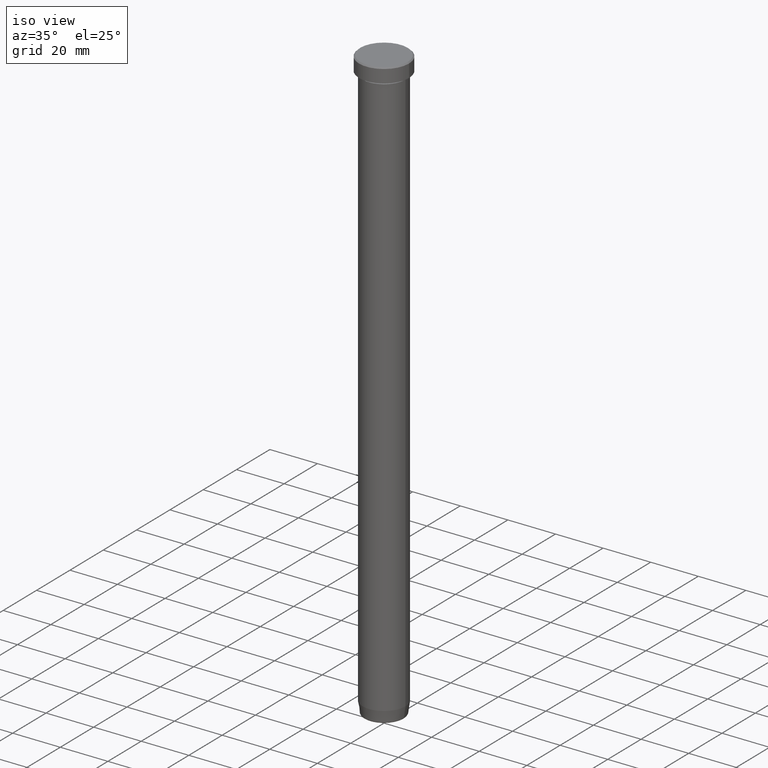
[diagram: clean part render]
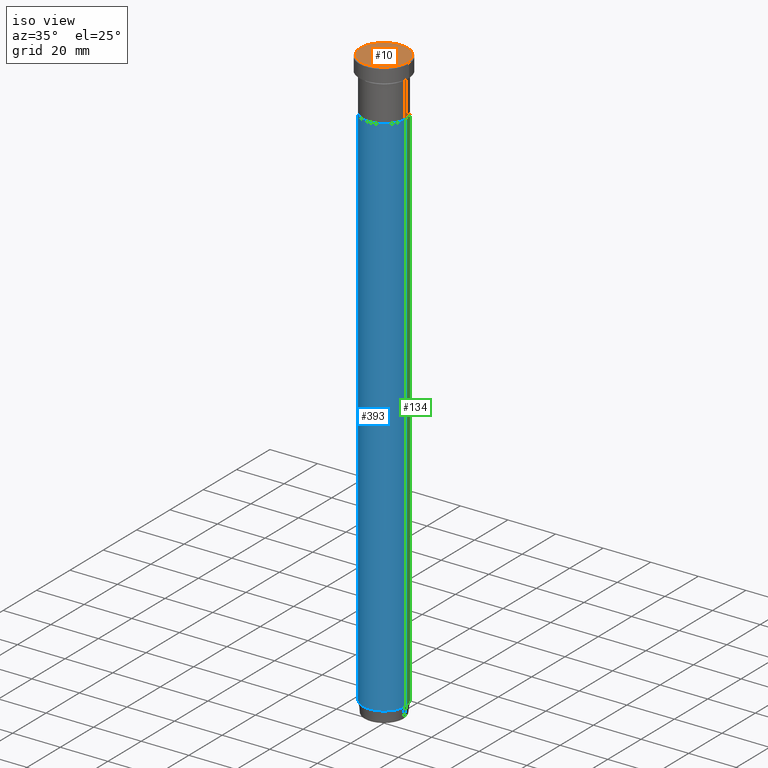
[diagram: same view with three faces highlighted in distinct colors, each labeled with its STEP entity id]
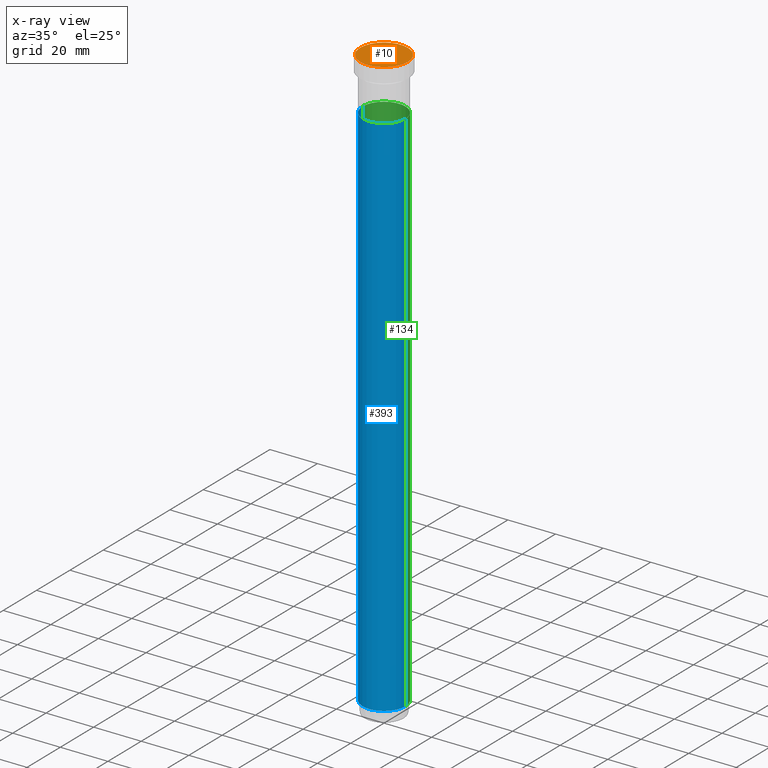
[diagram: x-ray of the same camera — body ghosted, the three highlighted faces saturated]
A machine part, iso view with three faces highlighted in distinct colors.
The next image is the same camera in x-ray (body ghosted, the three faces saturated) — at least one of them is partly hidden behind the body in this view.
Their STEP definitions:

[orange] entity #10 — the highlighted planar face has unit normal (0, -0, 1).
#10 = ADVANCED_FACE ( 'NONE', ( #503 ), #215, .T. ) ;
#27 = AXIS2_PLACEMENT_3D ( 'NONE', #115, #295, #483 ) ;
#28 = CARTESIAN_POINT ( 'NONE',  ( -10.00000000000000178, 0.000000000000000000, 0.000000000000000000 ) ) ;
#44 = CIRCLE ( 'NONE', #27, 10.00000000000000178 ) ;
#88 = CARTESIAN_POINT ( 'NONE',  ( 10.00000000000000178, 1.255262969126037241E-15, 0.000000000000000000 ) ) ;
#89 = EDGE_LOOP ( 'NONE', ( #208, #246 ) ) ;
#113 = DIRECTION ( 'NONE',  ( -0.000000000000000000, -0.000000000000000000, 1.000000000000000000 ) ) ;
#115 = CARTESIAN_POINT ( 'NONE',  ( 0.000000000000000000, 0.000000000000000000, 0.000000000000000000 ) ) ;
#131 = CIRCLE ( 'NONE', #216, 10.00000000000000178 ) ;
#158 = VERTEX_POINT ( 'NONE', #88 ) ;
#180 = DIRECTION ( 'NONE',  ( 0.000000000000000000, -0.000000000000000000, 1.000000000000000000 ) ) ;
#208 = ORIENTED_EDGE ( 'NONE', *, *, #554, .T. ) ;
#215 = PLANE ( 'NONE',  #388 ) ;
#216 = AXIS2_PLACEMENT_3D ( 'NONE', #526, #113, #480 ) ;
#224 = VERTEX_POINT ( 'NONE', #28 ) ;
#246 = ORIENTED_EDGE ( 'NONE', *, *, #585, .T. ) ;
#295 = DIRECTION ( 'NONE',  ( -0.000000000000000000, -0.000000000000000000, 1.000000000000000000 ) ) ;
#304 = DIRECTION ( 'NONE',  ( 1.000000000000000000, 0.000000000000000000, 0.000000000000000000 ) ) ;
#388 = AXIS2_PLACEMENT_3D ( 'NONE', #534, #180, #304 ) ;
#480 = DIRECTION ( 'NONE',  ( 1.000000000000000000, 0.000000000000000000, 0.000000000000000000 ) ) ;
#483 = DIRECTION ( 'NONE',  ( 1.000000000000000000, 0.000000000000000000, 0.000000000000000000 ) ) ;
#503 = FACE_OUTER_BOUND ( 'NONE', #89, .T. ) ;
#526 = CARTESIAN_POINT ( 'NONE',  ( 0.000000000000000000, 0.000000000000000000, 0.000000000000000000 ) ) ;
#534 = CARTESIAN_POINT ( 'NONE',  ( 0.000000000000000000, 0.000000000000000000, 0.000000000000000000 ) ) ;
#554 = EDGE_CURVE ( 'NONE', #224, #158, #131, .T. ) ;
#585 = EDGE_CURVE ( 'NONE', #158, #224, #44, .T. ) ;

[blue] entity #393 — the highlighted cylindrical surface (edge-blend (fillet) strip) has radius 9 mm, axis along (-0, -0, 1).
#15 = CARTESIAN_POINT ( 'NONE',  ( -9.000000000000000000, 1.102182119232617714E-15, -22.00000000000000000 ) ) ;
#37 = CARTESIAN_POINT ( 'NONE',  ( 9.000000000000000000, 0.000000000000000000, -245.0000000000000000 ) ) ;
#46 = DIRECTION ( 'NONE',  ( -0.000000000000000000, -0.000000000000000000, 1.000000000000000000 ) ) ;
#47 = CARTESIAN_POINT ( 'NONE',  ( -9.000000000000000000, 1.102182119232617714E-15, -245.0000000000000000 ) ) ;
#77 = DIRECTION ( 'NONE',  ( -0.000000000000000000, -0.000000000000000000, 1.000000000000000000 ) ) ;
#78 = CARTESIAN_POINT ( 'NONE',  ( 0.000000000000000000, 0.000000000000000000, -245.0000000000000000 ) ) ;
#96 = EDGE_CURVE ( 'NONE', #184, #102, #565, .T. ) ;
#98 = DIRECTION ( 'NONE',  ( 1.000000000000000000, 0.000000000000000000, 0.000000000000000000 ) ) ;
#101 = ORIENTED_EDGE ( 'NONE', *, *, #96, .T. ) ;
#102 = VERTEX_POINT ( 'NONE', #37 ) ;
#140 = AXIS2_PLACEMENT_3D ( 'NONE', #379, #450, #98 ) ;
#184 = VERTEX_POINT ( 'NONE', #47 ) ;
#223 = CARTESIAN_POINT ( 'NONE',  ( 9.000000000000000000, 0.000000000000000000, 0.000000000000000000 ) ) ;
#265 = DIRECTION ( 'NONE',  ( -0.000000000000000000, -0.000000000000000000, 1.000000000000000000 ) ) ;
#267 = ORIENTED_EDGE ( 'NONE', *, *, #531, .F. ) ;
#332 = EDGE_LOOP ( 'NONE', ( #581, #101, #424, #267 ) ) ;
#349 = DIRECTION ( 'NONE',  ( -0.000000000000000000, -0.000000000000000000, 1.000000000000000000 ) ) ;
#355 = FACE_OUTER_BOUND ( 'NONE', #332, .T. ) ;
#375 = CARTESIAN_POINT ( 'NONE',  ( -9.000000000000000000, 1.102182119232617714E-15, 0.000000000000000000 ) ) ;
#379 = CARTESIAN_POINT ( 'NONE',  ( 0.000000000000000000, 0.000000000000000000, -22.00000000000000000 ) ) ;
#393 = ADVANCED_FACE ( 'NONE', ( #355 ), #546, .T. ) ;
#400 = CIRCLE ( 'NONE', #140, 9.000000000000000000 ) ;
#408 = VECTOR ( 'NONE', #349, 1000.000000000000000 ) ;
#423 = EDGE_CURVE ( 'NONE', #102, #568, #492, .T. ) ;
#424 = ORIENTED_EDGE ( 'NONE', *, *, #423, .T. ) ;
#430 = CARTESIAN_POINT ( 'NONE',  ( 9.000000000000000000, 0.000000000000000000, -22.00000000000000000 ) ) ;
#443 = DIRECTION ( 'NONE',  ( 1.000000000000000000, 0.000000000000000000, 0.000000000000000000 ) ) ;
#450 = DIRECTION ( 'NONE',  ( -0.000000000000000000, -0.000000000000000000, 1.000000000000000000 ) ) ;
#451 = VECTOR ( 'NONE', #46, 1000.000000000000000 ) ;
#457 = LINE ( 'NONE', #375, #451 ) ;
#492 = LINE ( 'NONE', #223, #408 ) ;
#497 = DIRECTION ( 'NONE',  ( 1.000000000000000000, 0.000000000000000000, 0.000000000000000000 ) ) ;
#506 = EDGE_CURVE ( 'NONE', #184, #544, #457, .T. ) ;
#531 = EDGE_CURVE ( 'NONE', #544, #568, #400, .T. ) ;
#544 = VERTEX_POINT ( 'NONE', #15 ) ;
#545 = AXIS2_PLACEMENT_3D ( 'NONE', #593, #77, #497 ) ;
#546 = CYLINDRICAL_SURFACE ( 'NONE', #545, 9.000000000000000000 ) ;
#565 = CIRCLE ( 'NONE', #586, 9.000000000000000000 ) ;
#568 = VERTEX_POINT ( 'NONE', #430 ) ;
#581 = ORIENTED_EDGE ( 'NONE', *, *, #506, .F. ) ;
#586 = AXIS2_PLACEMENT_3D ( 'NONE', #78, #265, #443 ) ;
#593 = CARTESIAN_POINT ( 'NONE',  ( 0.000000000000000000, 0.000000000000000000, 0.000000000000000000 ) ) ;

[green] entity #134 — the highlighted cylindrical surface (edge-blend (fillet) strip) has radius 9 mm, axis along (-0, -0, 1).
#2 = CARTESIAN_POINT ( 'NONE',  ( 0.000000000000000000, 0.000000000000000000, 0.000000000000000000 ) ) ;
#15 = CARTESIAN_POINT ( 'NONE',  ( -9.000000000000000000, 1.102182119232617714E-15, -22.00000000000000000 ) ) ;
#22 = CARTESIAN_POINT ( 'NONE',  ( 0.000000000000000000, 0.000000000000000000, -245.0000000000000000 ) ) ;
#37 = CARTESIAN_POINT ( 'NONE',  ( 9.000000000000000000, 0.000000000000000000, -245.0000000000000000 ) ) ;
#46 = DIRECTION ( 'NONE',  ( -0.000000000000000000, -0.000000000000000000, 1.000000000000000000 ) ) ;
#47 = CARTESIAN_POINT ( 'NONE',  ( -9.000000000000000000, 1.102182119232617714E-15, -245.0000000000000000 ) ) ;
#64 = DIRECTION ( 'NONE',  ( -0.000000000000000000, -0.000000000000000000, 1.000000000000000000 ) ) ;
#102 = VERTEX_POINT ( 'NONE', #37 ) ;
#112 = AXIS2_PLACEMENT_3D ( 'NONE', #391, #162, #340 ) ;
#134 = ADVANCED_FACE ( 'NONE', ( #185 ), #142, .T. ) ;
#137 = DIRECTION ( 'NONE',  ( -0.000000000000000000, -0.000000000000000000, 1.000000000000000000 ) ) ;
#142 = CYLINDRICAL_SURFACE ( 'NONE', #559, 9.000000000000000000 ) ;
#152 = CIRCLE ( 'NONE', #370, 9.000000000000000000 ) ;
#162 = DIRECTION ( 'NONE',  ( -0.000000000000000000, -0.000000000000000000, 1.000000000000000000 ) ) ;
#184 = VERTEX_POINT ( 'NONE', #47 ) ;
#185 = FACE_OUTER_BOUND ( 'NONE', #241, .T. ) ;
#223 = CARTESIAN_POINT ( 'NONE',  ( 9.000000000000000000, 0.000000000000000000, 0.000000000000000000 ) ) ;
#227 = CIRCLE ( 'NONE', #112, 9.000000000000000000 ) ;
#241 = EDGE_LOOP ( 'NONE', ( #426, #345, #518, #366 ) ) ;
#285 = EDGE_CURVE ( 'NONE', #102, #184, #152, .T. ) ;
#340 = DIRECTION ( 'NONE',  ( 1.000000000000000000, 0.000000000000000000, 0.000000000000000000 ) ) ;
#345 = ORIENTED_EDGE ( 'NONE', *, *, #506, .T. ) ;
#349 = DIRECTION ( 'NONE',  ( -0.000000000000000000, -0.000000000000000000, 1.000000000000000000 ) ) ;
#366 = ORIENTED_EDGE ( 'NONE', *, *, #423, .F. ) ;
#369 = DIRECTION ( 'NONE',  ( 1.000000000000000000, 0.000000000000000000, 0.000000000000000000 ) ) ;
#370 = AXIS2_PLACEMENT_3D ( 'NONE', #22, #64, #576 ) ;
#375 = CARTESIAN_POINT ( 'NONE',  ( -9.000000000000000000, 1.102182119232617714E-15, 0.000000000000000000 ) ) ;
#391 = CARTESIAN_POINT ( 'NONE',  ( 0.000000000000000000, 0.000000000000000000, -22.00000000000000000 ) ) ;
#408 = VECTOR ( 'NONE', #349, 1000.000000000000000 ) ;
#423 = EDGE_CURVE ( 'NONE', #102, #568, #492, .T. ) ;
#426 = ORIENTED_EDGE ( 'NONE', *, *, #285, .T. ) ;
#430 = CARTESIAN_POINT ( 'NONE',  ( 9.000000000000000000, 0.000000000000000000, -22.00000000000000000 ) ) ;
#451 = VECTOR ( 'NONE', #46, 1000.000000000000000 ) ;
#457 = LINE ( 'NONE', #375, #451 ) ;
#492 = LINE ( 'NONE', #223, #408 ) ;
#506 = EDGE_CURVE ( 'NONE', #184, #544, #457, .T. ) ;
#518 = ORIENTED_EDGE ( 'NONE', *, *, #575, .F. ) ;
#544 = VERTEX_POINT ( 'NONE', #15 ) ;
#559 = AXIS2_PLACEMENT_3D ( 'NONE', #2, #137, #369 ) ;
#568 = VERTEX_POINT ( 'NONE', #430 ) ;
#575 = EDGE_CURVE ( 'NONE', #568, #544, #227, .T. ) ;
#576 = DIRECTION ( 'NONE',  ( 1.000000000000000000, 0.000000000000000000, 0.000000000000000000 ) ) ;